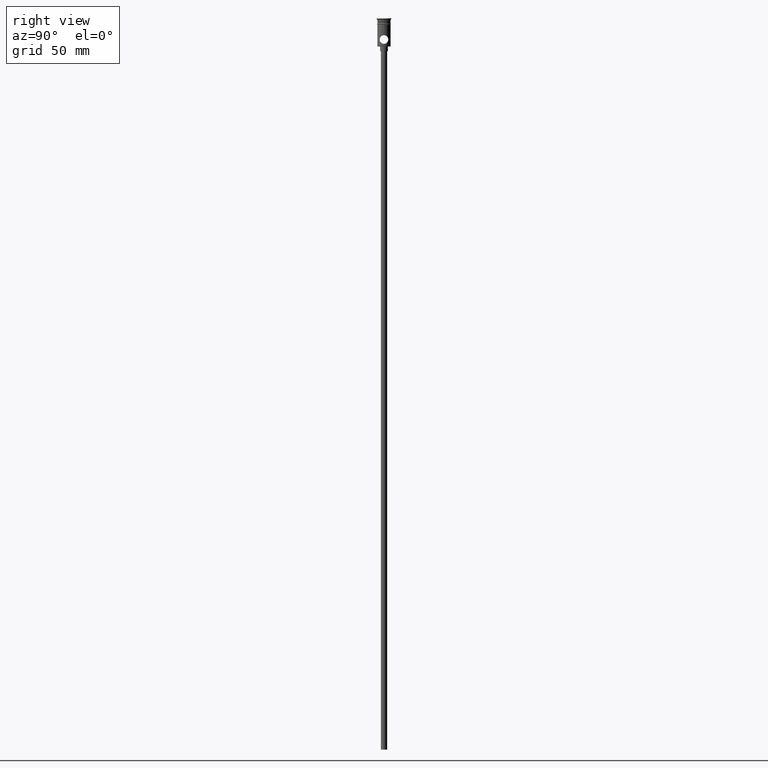
[diagram: clean part render]
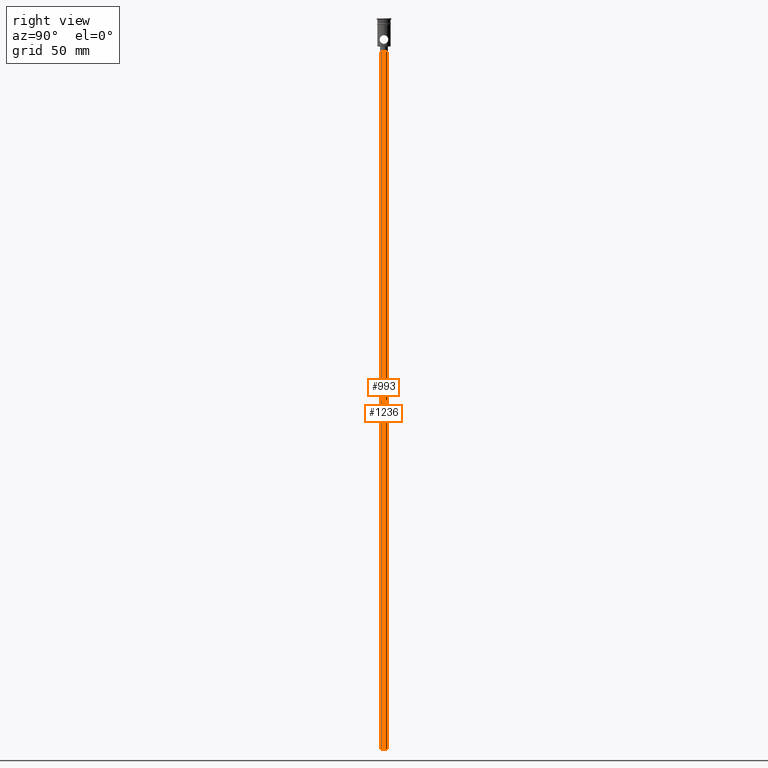
[diagram: same view with one multi-face feature highlighted, each face labeled with its STEP entity id]
A machine part, right view. The highlighted faces form ONE feature: a constant-radius fillet chain: 2 tangent blend faces with common blend radius 2 mm. The faces share edges in the B-rep.
Their STEP definitions:
[1] entity #1236 (Cylinder):
#11 = DIRECTION ( 'NONE',  ( -0.000000000000000000, -0.000000000000000000, 1.000000000000000000 ) ) ;
#43 = DIRECTION ( 'NONE',  ( -0.000000000000000000, -0.000000000000000000, 1.000000000000000000 ) ) ;
#113 = CARTESIAN_POINT ( 'NONE',  ( -2.000000000000000000, 2.449293598294706414E-16, -20.99999999999999645 ) ) ;
#117 = CARTESIAN_POINT ( 'NONE',  ( 2.000000000000000000, 0.000000000000000000, -20.99999999999999645 ) ) ;
#187 = VERTEX_POINT ( 'NONE', #1333 ) ;
#288 = EDGE_CURVE ( 'NONE', #1034, #1429, #457, .T. ) ;
#296 = AXIS2_PLACEMENT_3D ( 'NONE', #1011, #1336, #352 ) ;
#343 = AXIS2_PLACEMENT_3D ( 'NONE', #1435, #1428, #517 ) ;
#352 = DIRECTION ( 'NONE',  ( -1.000000000000000000, 0.000000000000000000, 0.000000000000000000 ) ) ;
#376 = EDGE_CURVE ( 'NONE', #187, #1034, #1351, .T. ) ;
#425 = DIRECTION ( 'NONE',  ( 0.000000000000000000, 0.000000000000000000, -1.000000000000000000 ) ) ;
#457 = CIRCLE ( 'NONE', #714, 2.000000000000000000 ) ;
#514 = ORIENTED_EDGE ( 'NONE', *, *, #376, .T. ) ;
#517 = DIRECTION ( 'NONE',  ( 1.000000000000000000, 0.000000000000000000, 0.000000000000000000 ) ) ;
#562 = CARTESIAN_POINT ( 'NONE',  ( 0.000000000000000000, 0.000000000000000000, -20.99999999999999645 ) ) ;
#634 = ORIENTED_EDGE ( 'NONE', *, *, #1393, .F. ) ;
#676 = CARTESIAN_POINT ( 'NONE',  ( 2.000000000000000000, 0.000000000000000000, -468.0000000000000000 ) ) ;
#714 = AXIS2_PLACEMENT_3D ( 'NONE', #562, #425, #1318 ) ;
#820 = CARTESIAN_POINT ( 'NONE',  ( -2.000000000000000000, 2.449293598294706414E-16, -468.0000000000000000 ) ) ;
#879 = EDGE_LOOP ( 'NONE', ( #913, #514, #1397, #634 ) ) ;
#881 = VECTOR ( 'NONE', #11, 1000.000000000000000 ) ;
#907 = CIRCLE ( 'NONE', #296, 2.000000000000000000 ) ;
#913 = ORIENTED_EDGE ( 'NONE', *, *, #1101, .F. ) ;
#995 = VECTOR ( 'NONE', #43, 1000.000000000000000 ) ;
#1002 = CARTESIAN_POINT ( 'NONE',  ( 2.000000000000000000, 0.000000000000000000, -468.0000000000000000 ) ) ;
#1011 = CARTESIAN_POINT ( 'NONE',  ( 0.000000000000000000, 0.000000000000000000, -468.0000000000000000 ) ) ;
#1034 = VERTEX_POINT ( 'NONE', #113 ) ;
#1101 = EDGE_CURVE ( 'NONE', #187, #1309, #907, .T. ) ;
#1236 = ADVANCED_FACE ( 'NONE', ( #1313 ), #1404, .T. ) ;
#1309 = VERTEX_POINT ( 'NONE', #1002 ) ;
#1313 = FACE_OUTER_BOUND ( 'NONE', #879, .T. ) ;
#1318 = DIRECTION ( 'NONE',  ( -1.000000000000000000, 0.000000000000000000, 0.000000000000000000 ) ) ;
#1333 = CARTESIAN_POINT ( 'NONE',  ( -2.000000000000000000, 2.449293598294706414E-16, -468.0000000000000000 ) ) ;
#1334 = LINE ( 'NONE', #676, #881 ) ;
#1336 = DIRECTION ( 'NONE',  ( 0.000000000000000000, 0.000000000000000000, -1.000000000000000000 ) ) ;
#1351 = LINE ( 'NONE', #820, #995 ) ;
#1393 = EDGE_CURVE ( 'NONE', #1309, #1429, #1334, .T. ) ;
#1397 = ORIENTED_EDGE ( 'NONE', *, *, #288, .T. ) ;
#1404 = CYLINDRICAL_SURFACE ( 'NONE', #343, 2.000000000000000000 ) ;
#1428 = DIRECTION ( 'NONE',  ( -0.000000000000000000, -0.000000000000000000, 1.000000000000000000 ) ) ;
#1429 = VERTEX_POINT ( 'NONE', #117 ) ;
#1435 = CARTESIAN_POINT ( 'NONE',  ( 0.000000000000000000, 0.000000000000000000, -468.0000000000000000 ) ) ;
[2] entity #993 (Cylinder):
#11 = DIRECTION ( 'NONE',  ( -0.000000000000000000, -0.000000000000000000, 1.000000000000000000 ) ) ;
#43 = DIRECTION ( 'NONE',  ( -0.000000000000000000, -0.000000000000000000, 1.000000000000000000 ) ) ;
#98 = DIRECTION ( 'NONE',  ( -0.000000000000000000, -0.000000000000000000, 1.000000000000000000 ) ) ;
#113 = CARTESIAN_POINT ( 'NONE',  ( -2.000000000000000000, 2.449293598294706414E-16, -20.99999999999999645 ) ) ;
#117 = CARTESIAN_POINT ( 'NONE',  ( 2.000000000000000000, 0.000000000000000000, -20.99999999999999645 ) ) ;
#131 = DIRECTION ( 'NONE',  ( -1.000000000000000000, 0.000000000000000000, 0.000000000000000000 ) ) ;
#187 = VERTEX_POINT ( 'NONE', #1333 ) ;
#209 = DIRECTION ( 'NONE',  ( 1.000000000000000000, 0.000000000000000000, 0.000000000000000000 ) ) ;
#221 = CARTESIAN_POINT ( 'NONE',  ( 0.000000000000000000, 0.000000000000000000, -468.0000000000000000 ) ) ;
#274 = ORIENTED_EDGE ( 'NONE', *, *, #1393, .T. ) ;
#308 = ORIENTED_EDGE ( 'NONE', *, *, #1089, .T. ) ;
#311 = EDGE_CURVE ( 'NONE', #1309, #187, #1067, .T. ) ;
#367 = CARTESIAN_POINT ( 'NONE',  ( 0.000000000000000000, 0.000000000000000000, -20.99999999999999645 ) ) ;
#376 = EDGE_CURVE ( 'NONE', #187, #1034, #1351, .T. ) ;
#527 = AXIS2_PLACEMENT_3D ( 'NONE', #1264, #1147, #131 ) ;
#532 = CIRCLE ( 'NONE', #787, 2.000000000000000000 ) ;
#536 = ORIENTED_EDGE ( 'NONE', *, *, #376, .F. ) ;
#676 = CARTESIAN_POINT ( 'NONE',  ( 2.000000000000000000, 0.000000000000000000, -468.0000000000000000 ) ) ;
#762 = CYLINDRICAL_SURFACE ( 'NONE', #930, 2.000000000000000000 ) ;
#787 = AXIS2_PLACEMENT_3D ( 'NONE', #367, #1128, #808 ) ;
#808 = DIRECTION ( 'NONE',  ( -1.000000000000000000, 0.000000000000000000, 0.000000000000000000 ) ) ;
#820 = CARTESIAN_POINT ( 'NONE',  ( -2.000000000000000000, 2.449293598294706414E-16, -468.0000000000000000 ) ) ;
#828 = ORIENTED_EDGE ( 'NONE', *, *, #311, .F. ) ;
#881 = VECTOR ( 'NONE', #11, 1000.000000000000000 ) ;
#930 = AXIS2_PLACEMENT_3D ( 'NONE', #221, #98, #209 ) ;
#947 = EDGE_LOOP ( 'NONE', ( #536, #828, #274, #308 ) ) ;
#993 = ADVANCED_FACE ( 'NONE', ( #1098 ), #762, .T. ) ;
#995 = VECTOR ( 'NONE', #43, 1000.000000000000000 ) ;
#1002 = CARTESIAN_POINT ( 'NONE',  ( 2.000000000000000000, 0.000000000000000000, -468.0000000000000000 ) ) ;
#1034 = VERTEX_POINT ( 'NONE', #113 ) ;
#1067 = CIRCLE ( 'NONE', #527, 2.000000000000000000 ) ;
#1089 = EDGE_CURVE ( 'NONE', #1429, #1034, #532, .T. ) ;
#1098 = FACE_OUTER_BOUND ( 'NONE', #947, .T. ) ;
#1128 = DIRECTION ( 'NONE',  ( 0.000000000000000000, 0.000000000000000000, -1.000000000000000000 ) ) ;
#1147 = DIRECTION ( 'NONE',  ( 0.000000000000000000, 0.000000000000000000, -1.000000000000000000 ) ) ;
#1264 = CARTESIAN_POINT ( 'NONE',  ( 0.000000000000000000, 0.000000000000000000, -468.0000000000000000 ) ) ;
#1309 = VERTEX_POINT ( 'NONE', #1002 ) ;
#1333 = CARTESIAN_POINT ( 'NONE',  ( -2.000000000000000000, 2.449293598294706414E-16, -468.0000000000000000 ) ) ;
#1334 = LINE ( 'NONE', #676, #881 ) ;
#1351 = LINE ( 'NONE', #820, #995 ) ;
#1393 = EDGE_CURVE ( 'NONE', #1309, #1429, #1334, .T. ) ;
#1429 = VERTEX_POINT ( 'NONE', #117 ) ;